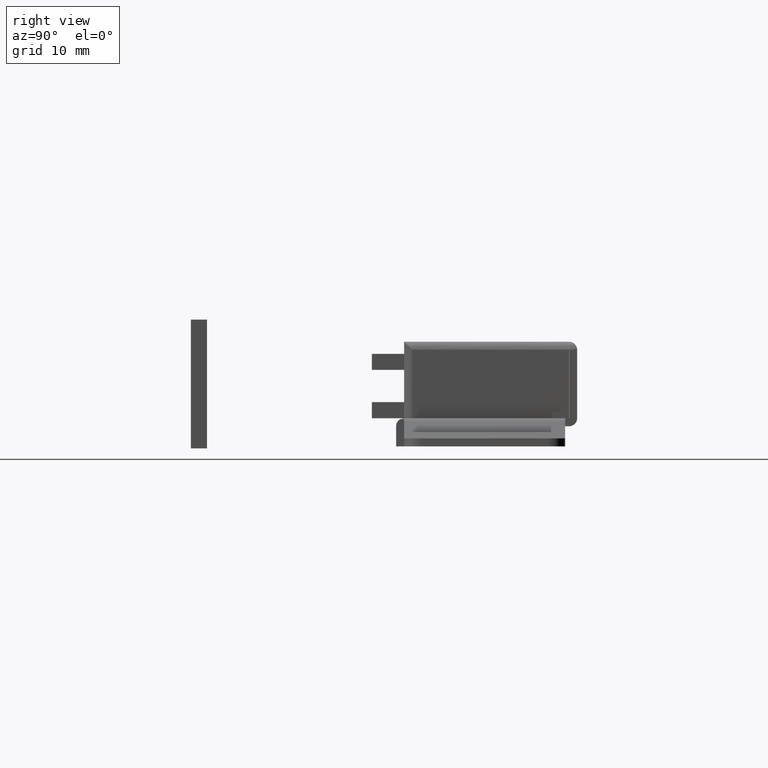
[diagram: clean part render]
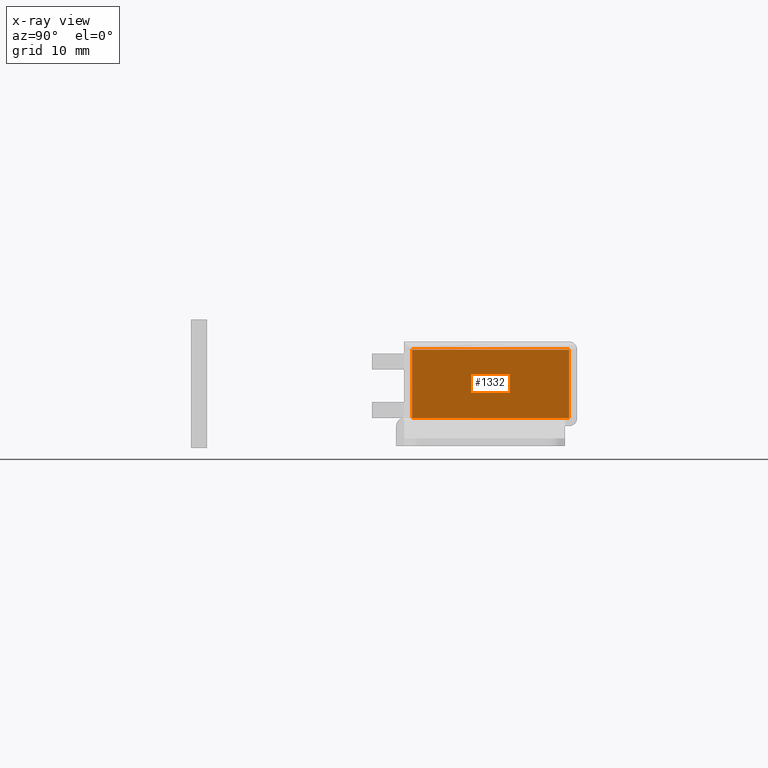
[diagram: x-ray — body ghosted, one internal face saturated and labeled with its STEP entity id]
A machine part, right view, then the same camera in x-ray: the body is ghosted and one INTERNAL B-rep face — a face not visible from any outside direction — is saturated and labeled: STEP entity #1332.
In plain terms, the highlighted face is a freeform B-spline surface patch.
Its self-contained STEP definition (entity closure, byte-faithful):
#470=CARTESIAN_POINT('',(-25.750000000000000,-1.500000000000000,3.500000000000000));
#471=VERTEX_POINT('',#470);
#477=CARTESIAN_POINT('',(-25.750000000000000,-20.500000000000000,3.500000000000060));
#478=VERTEX_POINT('',#477);
#479=CARTESIAN_POINT('',(-25.750000000000000,-1.500000000000000,3.500000000000000));
#480=CARTESIAN_POINT('',(-25.750000000000000,-20.500000000000000,3.500000000000060));
#481=QUASI_UNIFORM_CURVE('',1,(#479,#480),.UNSPECIFIED.,.F.,.U.);
#482=EDGE_CURVE('',#471,#478,#481,.T.);
#499=CARTESIAN_POINT('',(-25.749995999999999,-21.500000000000000,11.989983999999980));
#500=VERTEX_POINT('',#499);
#624=CARTESIAN_POINT('',(-25.749995999999999,-21.500000000000000,11.999984000000000));
#625=VERTEX_POINT('',#624);
#626=CARTESIAN_POINT('',(-25.749995999999999,-21.500000000000000,11.989983999999980));
#627=CARTESIAN_POINT('',(-25.749995999999999,-21.500000000000000,11.999984000000000));
#628=QUASI_UNIFORM_CURVE('',1,(#626,#627),.UNSPECIFIED.,.F.,.U.);
#629=EDGE_CURVE('',#500,#625,#628,.T.);
#1292=CARTESIAN_POINT('',(-25.749995999999999,-22.523475482081189,12.424558184325379));
#1293=CARTESIAN_POINT('',(-25.749995999999999,-22.523475482081189,3.075425587687281));
#1294=CARTESIAN_POINT('',(-25.749995999999999,0.013476467997930,12.424558184325379));
#1295=CARTESIAN_POINT('',(-25.749995999999999,0.013476467997930,3.075425587687281));
#1296=B_SPLINE_SURFACE_WITH_KNOTS('',1,1,((#1292,#1294),(#1293,#1295)),.UNSPECIFIED.,.F.,.F.,.U.,(2,2),(2,2),(0.0,9.349132596638102),(0.0,22.536951950079121),.UNSPECIFIED.);
#1297=CARTESIAN_POINT('',(-25.749996000000049,-1.009999563667900,3.500000000000085));
#1298=VERTEX_POINT('',#1297);
#1299=CARTESIAN_POINT('',(-25.749996000000049,-1.009999563667900,3.500000000000085));
#1300=CARTESIAN_POINT('',(-25.750000000000000,-1.500000000000000,3.500000000000000));
#1301=QUASI_UNIFORM_CURVE('',1,(#1299,#1300),.UNSPECIFIED.,.F.,.U.);
#1302=EDGE_CURVE('',#1298,#471,#1301,.T.);
#1303=ORIENTED_EDGE('',*,*,#1302,.F.);
#1304=CARTESIAN_POINT('',(-25.750000000000000,-1.009999999999178,11.999984000000000));
#1305=VERTEX_POINT('',#1304);
#1306=CARTESIAN_POINT('',(-25.749996000000049,-1.009999563667900,3.500000000000085));
#1307=CARTESIAN_POINT('',(-25.750000000000000,-1.009999999999178,11.999984000000000));
#1308=QUASI_UNIFORM_CURVE('',1,(#1306,#1307),.UNSPECIFIED.,.F.,.U.);
#1309=EDGE_CURVE('',#1298,#1305,#1308,.T.);
#1310=ORIENTED_EDGE('',*,*,#1309,.T.);
#1311=CARTESIAN_POINT('',(-25.750000000000000,-1.009999999999178,11.999984000000000));
#1312=CARTESIAN_POINT('',(-25.749995999999999,-21.500000000000000,11.999984000000000));
#1313=QUASI_UNIFORM_CURVE('',1,(#1311,#1312),.UNSPECIFIED.,.F.,.U.);
#1314=EDGE_CURVE('',#1305,#625,#1313,.T.);
#1315=ORIENTED_EDGE('',*,*,#1314,.T.);
#1316=ORIENTED_EDGE('',*,*,#629,.F.);
#1317=CARTESIAN_POINT('',(-25.750000000000000,-20.500000000000000,11.989983999999939));
#1318=VERTEX_POINT('',#1317);
#1319=CARTESIAN_POINT('',(-25.750000000000000,-20.500000000000000,11.989983999999939));
#1320=CARTESIAN_POINT('',(-25.749995999999999,-21.500000000000000,11.989983999999980));
#1321=QUASI_UNIFORM_CURVE('',1,(#1319,#1320),.UNSPECIFIED.,.F.,.U.);
#1322=EDGE_CURVE('',#1318,#500,#1321,.T.);
#1323=ORIENTED_EDGE('',*,*,#1322,.F.);
#1324=CARTESIAN_POINT('',(-25.750000000000000,-20.500000000000000,11.989983999999939));
#1325=CARTESIAN_POINT('',(-25.750000000000000,-20.500000000000000,3.500000000000060));
#1326=QUASI_UNIFORM_CURVE('',1,(#1324,#1325),.UNSPECIFIED.,.F.,.U.);
#1327=EDGE_CURVE('',#1318,#478,#1326,.T.);
#1328=ORIENTED_EDGE('',*,*,#1327,.T.);
#1329=ORIENTED_EDGE('',*,*,#482,.F.);
#1330=EDGE_LOOP('',(#1303,#1310,#1315,#1316,#1323,#1328,#1329));
#1331=FACE_OUTER_BOUND('',#1330,.T.);
#1332=ADVANCED_FACE('',(#1331),#1296,.T.);